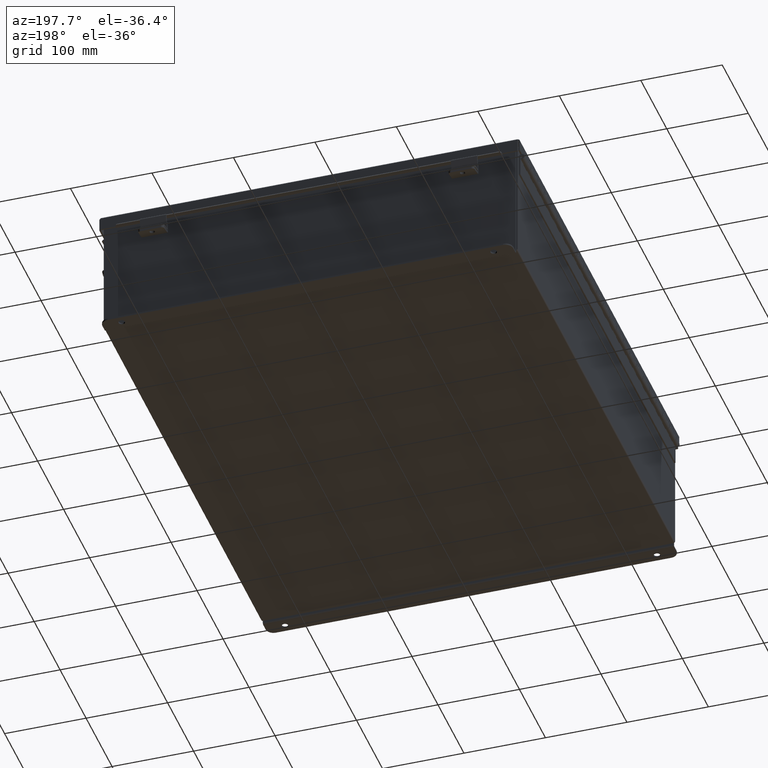
[diagram: clean part render]
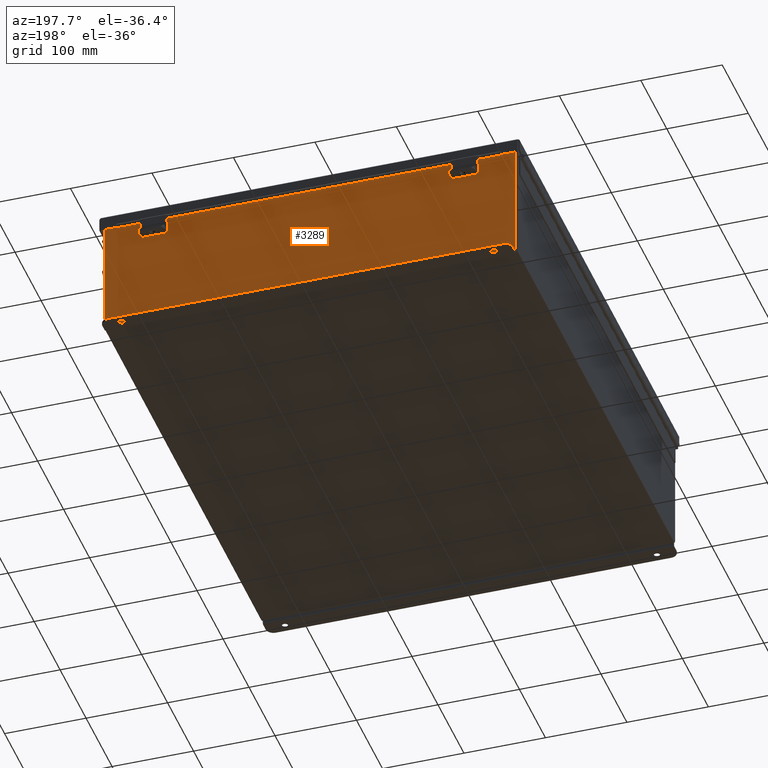
[diagram: same view with one face highlighted and labeled with its STEP entity id]
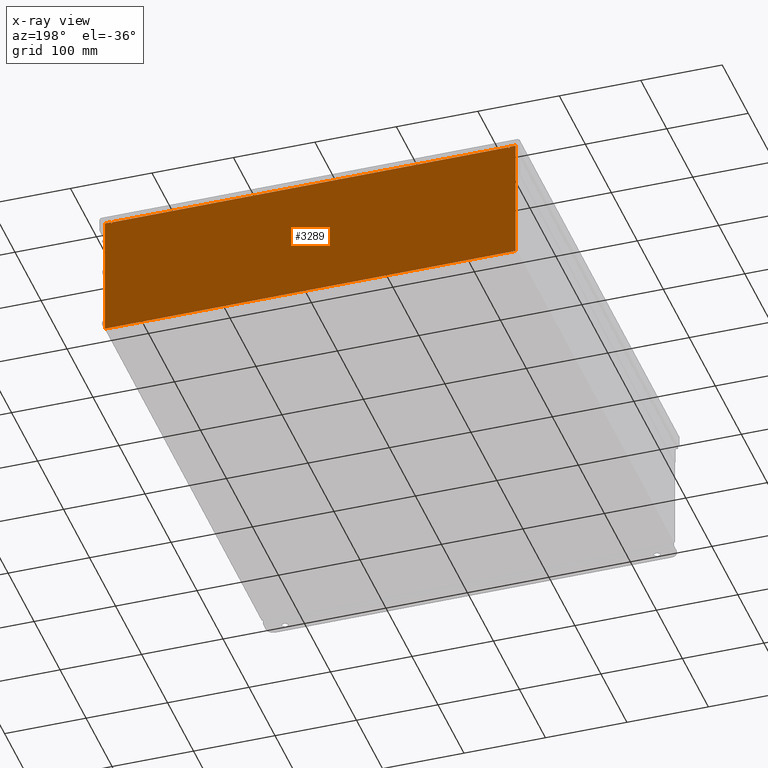
[diagram: x-ray of the same camera — body ghosted, the highlighted face saturated]
A machine part, auxiliary view. The second image highlights one B-rep face of the part: STEP entity #3289.
The next image is the same camera in x-ray: the body ghosted, the highlighted face saturated — about 0% of this face is hidden behind the body in this view.
In plain terms, the highlighted planar face has unit normal (0, -1, 0).
Its self-contained STEP definition (entity closure, byte-faithful):
#558 = VERTEX_POINT ( 'NONE', #21238 ) ;
#761 = ORIENTED_EDGE ( 'NONE', *, *, #20299, .T. ) ;
#1436 = EDGE_LOOP ( 'NONE', ( #6892, #13278, #5844, #21232, #15345, #3591, #5937, #9939, #761, #11245, #16753, #4372 ) ) ;
#1502 = LINE ( 'NONE', #21528, #20674 ) ;
#1535 = CARTESIAN_POINT ( 'NONE',  ( -9.582299999999998300, 3.380661892159525700E-015, 2.912299999999998300 ) ) ;
#1744 = CARTESIAN_POINT ( 'NONE',  ( 9.582300000000001800, 0.0000000000000000000, 0.0000000000000000000 ) ) ;
#1971 = LINE ( 'NONE', #13657, #7478 ) ;
#2126 = LINE ( 'NONE', #17247, #21299 ) ;
#3289 = ADVANCED_FACE ( 'NONE', ( #8642 ), #22087, .F. ) ;
#3316 = EDGE_CURVE ( 'NONE', #3799, #18015, #21727, .T. ) ;
#3591 = ORIENTED_EDGE ( 'NONE', *, *, #20437, .F. ) ;
#3658 = VECTOR ( 'NONE', #13208, 39.37007874015748100 ) ;
#3799 = VERTEX_POINT ( 'NONE', #8986 ) ;
#3917 = DIRECTION ( 'NONE',  ( -0.0000000000000000000, -0.0000000000000000000, 1.000000000000000000 ) ) ;
#3997 = VECTOR ( 'NONE', #14724, 39.37007874015748100 ) ;
#4225 = LINE ( 'NONE', #11368, #3658 ) ;
#4372 = ORIENTED_EDGE ( 'NONE', *, *, #23000, .T. ) ;
#4690 = EDGE_CURVE ( 'NONE', #17674, #20043, #9497, .T. ) ;
#4810 = CARTESIAN_POINT ( 'NONE',  ( -9.925299999999998200, 0.0000000000000000000, 2.925300000000000000 ) ) ;
#5162 = VERTEX_POINT ( 'NONE', #15697 ) ;
#5197 = DIRECTION ( 'NONE',  ( 1.000000000000000000, 0.0000000000000000000, 0.0000000000000000000 ) ) ;
#5844 = ORIENTED_EDGE ( 'NONE', *, *, #6899, .F. ) ;
#5937 = ORIENTED_EDGE ( 'NONE', *, *, #3316, .F. ) ;
#6412 = VERTEX_POINT ( 'NONE', #21964 ) ;
#6424 = CARTESIAN_POINT ( 'NONE',  ( 9.925300000000001800, 0.0000000000000000000, 2.925300000000000000 ) ) ;
#6659 = LINE ( 'NONE', #13163, #11007 ) ;
#6892 = ORIENTED_EDGE ( 'NONE', *, *, #10765, .F. ) ;
#6899 = EDGE_CURVE ( 'NONE', #17674, #15753, #1971, .T. ) ;
#7287 = CARTESIAN_POINT ( 'NONE',  ( 9.619650000000001800, 0.0000000000000000000, 0.0000000000000000000 ) ) ;
#7478 = VECTOR ( 'NONE', #17406, 39.37007874015748100 ) ;
#7565 = AXIS2_PLACEMENT_3D ( 'NONE', #14586, #10938, #23950 ) ;
#8118 = CARTESIAN_POINT ( 'NONE',  ( 9.600975000000000000, 0.0000000000000000000, 2.874949999999998300 ) ) ;
#8374 = LINE ( 'NONE', #1744, #3997 ) ;
#8642 = FACE_OUTER_BOUND ( 'NONE', #1436, .T. ) ;
#8986 = CARTESIAN_POINT ( 'NONE',  ( 9.619650000000001800, 0.0000000000000000000, 2.925300000000000000 ) ) ;
#9497 = LINE ( 'NONE', #1535, #19346 ) ;
#9634 = EDGE_CURVE ( 'NONE', #3799, #12095, #2126, .T. ) ;
#9939 = ORIENTED_EDGE ( 'NONE', *, *, #9634, .T. ) ;
#9984 = DIRECTION ( 'NONE',  ( 0.0000000000000000000, 0.0000000000000000000, -1.000000000000000000 ) ) ;
#10016 = CARTESIAN_POINT ( 'NONE',  ( -9.600974999999998300, 0.0000000000000000000, 2.874949999999998300 ) ) ;
#10405 = DIRECTION ( 'NONE',  ( 1.000000000000000000, -0.0000000000000000000, -0.0000000000000000000 ) ) ;
#10765 = EDGE_CURVE ( 'NONE', #558, #14465, #21572, .T. ) ;
#10938 = DIRECTION ( 'NONE',  ( 0.0000000000000000000, -1.000000000000000000, 0.0000000000000000000 ) ) ;
#10983 = EDGE_CURVE ( 'NONE', #19670, #5162, #1502, .T. ) ;
#11007 = VECTOR ( 'NONE', #3917, 39.37007874015748100 ) ;
#11077 = CARTESIAN_POINT ( 'NONE',  ( -9.619649999999998300, 0.0000000000000000000, 2.925300000000000000 ) ) ;
#11245 = ORIENTED_EDGE ( 'NONE', *, *, #10983, .F. ) ;
#11368 = CARTESIAN_POINT ( 'NONE',  ( 9.925300000000001800, 0.0000000000000000000, 2.925300000000000000 ) ) ;
#11808 = VECTOR ( 'NONE', #24035, 39.37007874015748100 ) ;
#11862 = DIRECTION ( 'NONE',  ( 0.0000000000000000000, 0.0000000000000000000, -1.000000000000000000 ) ) ;
#12095 = VERTEX_POINT ( 'NONE', #6424 ) ;
#12244 = VECTOR ( 'NONE', #13453, 39.37007874015748100 ) ;
#12515 = VECTOR ( 'NONE', #5197, 39.37007874015748100 ) ;
#12823 = CIRCLE ( 'NONE', #15120, 0.01867500000000003900 ) ;
#13163 = CARTESIAN_POINT ( 'NONE',  ( -9.925299999999998200, 0.0000000000000000000, 2.925300000000000000 ) ) ;
#13208 = DIRECTION ( 'NONE',  ( 0.0000000000000000000, 0.0000000000000000000, -1.000000000000000000 ) ) ;
#13256 = AXIS2_PLACEMENT_3D ( 'NONE', #8118, #21109, #9984 ) ;
#13278 = ORIENTED_EDGE ( 'NONE', *, *, #22748, .F. ) ;
#13453 = DIRECTION ( 'NONE',  ( 0.0000000000000000000, 0.0000000000000000000, 1.000000000000000000 ) ) ;
#13657 = CARTESIAN_POINT ( 'NONE',  ( -9.582299999999998300, -0.0000000000000000000, 0.0000000000000000000 ) ) ;
#14465 = VERTEX_POINT ( 'NONE', #11077 ) ;
#14522 = DIRECTION ( 'NONE',  ( 1.000000000000000000, 0.0000000000000000000, 0.0000000000000000000 ) ) ;
#14586 = CARTESIAN_POINT ( 'NONE',  ( 0.0000000000000000000, 0.0000000000000000000, 0.0000000000000000000 ) ) ;
#14724 = DIRECTION ( 'NONE',  ( 0.0000000000000000000, 0.0000000000000000000, 1.000000000000000000 ) ) ;
#15120 = AXIS2_PLACEMENT_3D ( 'NONE', #10016, #23005, #11862 ) ;
#15338 = CARTESIAN_POINT ( 'NONE',  ( -9.619649999999998300, -0.0000000000000000000, 0.0000000000000000000 ) ) ;
#15345 = ORIENTED_EDGE ( 'NONE', *, *, #18397, .F. ) ;
#15697 = CARTESIAN_POINT ( 'NONE',  ( 9.925300000000001800, -9.177301853715884100E-017, -3.099299999999999900 ) ) ;
#15753 = VERTEX_POINT ( 'NONE', #18400 ) ;
#16028 = CARTESIAN_POINT ( 'NONE',  ( -9.582299999999998300, 3.380661892159525700E-015, 2.912299999999998300 ) ) ;
#16753 = ORIENTED_EDGE ( 'NONE', *, *, #17976, .T. ) ;
#16988 = CARTESIAN_POINT ( 'NONE',  ( 9.619650000000001800, 0.0000000000000000000, 2.874949999999998300 ) ) ;
#17247 = CARTESIAN_POINT ( 'NONE',  ( -9.925299999999998200, 0.0000000000000000000, 2.925300000000000000 ) ) ;
#17329 = DIRECTION ( 'NONE',  ( 1.000000000000000000, 0.0000000000000000000, 0.0000000000000000000 ) ) ;
#17406 = DIRECTION ( 'NONE',  ( 0.0000000000000000000, 0.0000000000000000000, -1.000000000000000000 ) ) ;
#17475 = LINE ( 'NONE', #19997, #12515 ) ;
#17674 = VERTEX_POINT ( 'NONE', #16028 ) ;
#17976 = EDGE_CURVE ( 'NONE', #19670, #18206, #6659, .T. ) ;
#18015 = VERTEX_POINT ( 'NONE', #16988 ) ;
#18206 = VERTEX_POINT ( 'NONE', #4810 ) ;
#18397 = EDGE_CURVE ( 'NONE', #6412, #20043, #8374, .T. ) ;
#18400 = CARTESIAN_POINT ( 'NONE',  ( -9.582299999999998300, -0.0000000000000000000, 2.874949999999998300 ) ) ;
#19346 = VECTOR ( 'NONE', #14522, 39.37007874015748100 ) ;
#19670 = VERTEX_POINT ( 'NONE', #22072 ) ;
#19997 = CARTESIAN_POINT ( 'NONE',  ( -9.925299999999998200, 0.0000000000000000000, 2.925300000000000000 ) ) ;
#20043 = VERTEX_POINT ( 'NONE', #23646 ) ;
#20299 = EDGE_CURVE ( 'NONE', #12095, #5162, #4225, .T. ) ;
#20437 = EDGE_CURVE ( 'NONE', #18015, #6412, #20520, .T. ) ;
#20520 = CIRCLE ( 'NONE', #13256, 0.01867500000000003900 ) ;
#20674 = VECTOR ( 'NONE', #10405, 39.37007874015748100 ) ;
#21109 = DIRECTION ( 'NONE',  ( -0.0000000000000000000, 1.000000000000000000, -0.0000000000000000000 ) ) ;
#21232 = ORIENTED_EDGE ( 'NONE', *, *, #4690, .T. ) ;
#21238 = CARTESIAN_POINT ( 'NONE',  ( -9.619649999999998300, 0.0000000000000000000, 2.874949999999998300 ) ) ;
#21299 = VECTOR ( 'NONE', #17329, 39.37007874015748100 ) ;
#21528 = CARTESIAN_POINT ( 'NONE',  ( -9.925299999999998200, -9.177301853715884100E-017, -3.099299999999999900 ) ) ;
#21572 = LINE ( 'NONE', #15338, #12244 ) ;
#21727 = LINE ( 'NONE', #7287, #11808 ) ;
#21964 = CARTESIAN_POINT ( 'NONE',  ( 9.582300000000000000, 0.0000000000000000000, 2.874949999999998300 ) ) ;
#22072 = CARTESIAN_POINT ( 'NONE',  ( -9.925299999999996500, -9.177301853715884100E-017, -3.099299999999999900 ) ) ;
#22087 = PLANE ( 'NONE',  #7565 ) ;
#22748 = EDGE_CURVE ( 'NONE', #15753, #558, #12823, .T. ) ;
#23000 = EDGE_CURVE ( 'NONE', #18206, #14465, #17475, .T. ) ;
#23005 = DIRECTION ( 'NONE',  ( -0.0000000000000000000, 1.000000000000000000, -0.0000000000000000000 ) ) ;
#23646 = CARTESIAN_POINT ( 'NONE',  ( 9.582300000000001800, 0.0000000000000000000, 2.912299999999998300 ) ) ;
#23950 = DIRECTION ( 'NONE',  ( 0.0000000000000000000, -0.0000000000000000000, -1.000000000000000000 ) ) ;
#24035 = DIRECTION ( 'NONE',  ( 0.0000000000000000000, 0.0000000000000000000, -1.000000000000000000 ) ) ;